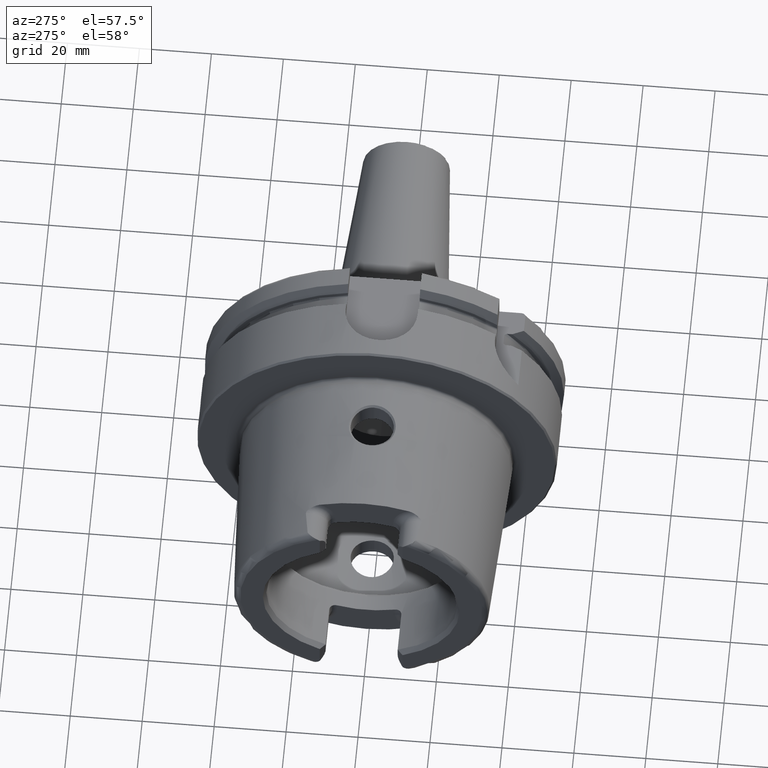
[diagram: clean part render]
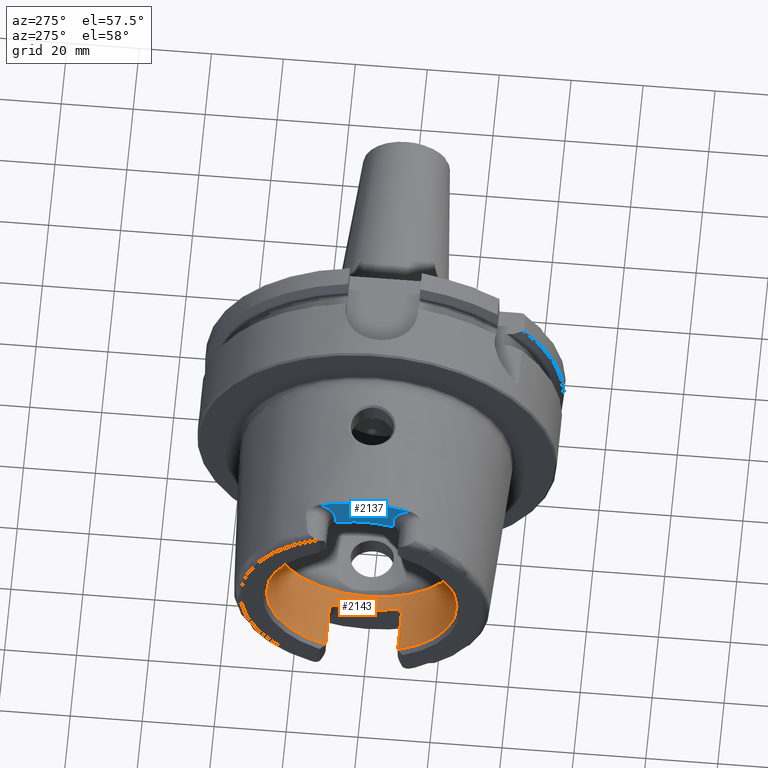
[diagram: same view with the hole feature highlighted: cylindrical wall and planar end face, labeled with their STEP entity ids]
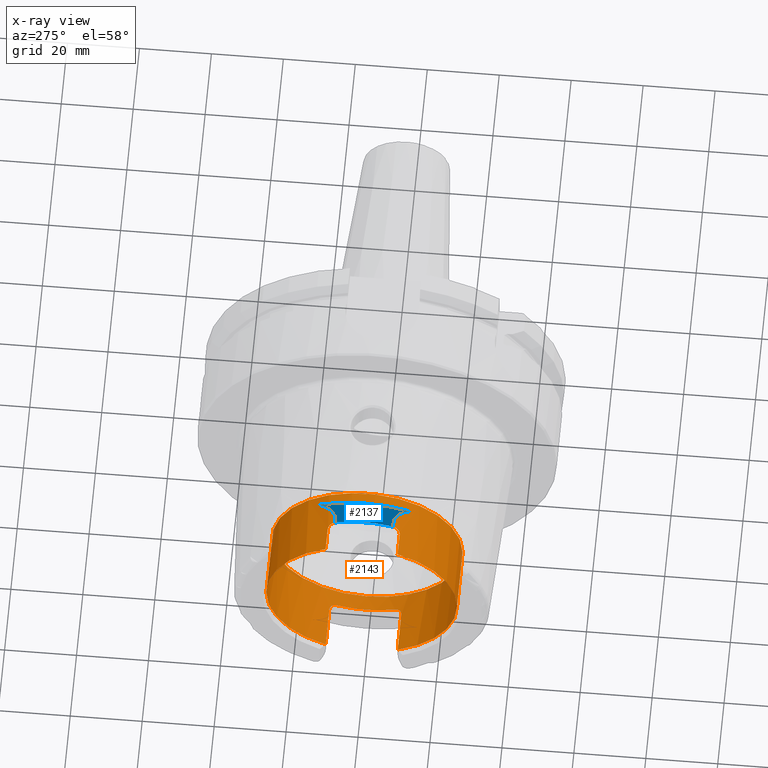
[diagram: x-ray of the same camera — body ghosted, the hole faces saturated]
A machine part, auxiliary view. The highlighted faces form one hole feature of diameter 53 mm: the cylindrical wall (entity #2143, orange) and its adjacent planar end face (entity #2137, blue) — they share a circular edge in the B-rep.
The next image is the same camera in x-ray (body ghosted, the hole faces saturated) — the bore reads through the body.
Wall:
#80=B_SPLINE_CURVE_WITH_KNOTS('',3,(#4470,#4471,#4472,#4473,#4474,#4475,
#4476,#4477,#4478,#4479),.UNSPECIFIED.,.F.,.F.,(4,2,2,2,4),(0.307245873696209,
0.387318131676521,0.467390389656833,0.542677307505841,0.617964225354849),
 .UNSPECIFIED.);
#81=B_SPLINE_CURVE_WITH_KNOTS('',3,(#4488,#4489,#4490,#4491,#4492,#4493,
#4494,#4495,#4496,#4497),.UNSPECIFIED.,.F.,.F.,(4,2,2,2,4),(0.61796422535485,
0.694491364966707,0.771018504578565,0.849854597041439,0.928690689504313),
 .UNSPECIFIED.);
#82=B_SPLINE_CURVE_WITH_KNOTS('',3,(#4510,#4511,#4512,#4513,#4514,#4515,
#4516,#4517,#4518,#4519),.UNSPECIFIED.,.F.,.F.,(4,2,2,2,4),(0.617964225354849,
0.693251143203857,0.768538061052865,0.848610319033177,0.928682577013489),
 .UNSPECIFIED.);
#83=B_SPLINE_CURVE_WITH_KNOTS('',3,(#4539,#4540,#4541,#4542,#4543,#4544,
#4545,#4546,#4547,#4548),.UNSPECIFIED.,.F.,.F.,(4,2,2,2,4),(0.307245873696209,
0.387318131676521,0.467390389656833,0.542677307505841,0.617964225354849),
 .UNSPECIFIED.);
#208=CYLINDRICAL_SURFACE('',#2409,26.5);
#313=FACE_OUTER_BOUND('',#447,.T.);
#447=EDGE_LOOP('',(#1906,#1907,#1908,#1909,#1910,#1911,#1912,#1913,#1914,
#1915,#1916,#1917,#1918,#1919,#1920,#1921,#1922));
#500=LINE('',#3254,#608);
#508=LINE('',#3329,#616);
#512=LINE('',#3393,#620);
#571=LINE('',#4535,#679);
#575=LINE('',#4583,#683);
#608=VECTOR('',#2614,10.);
#616=VECTOR('',#2660,10.);
#620=VECTOR('',#2682,10.);
#679=VECTOR('',#2961,10.);
#683=VECTOR('',#3005,26.5);
#730=CIRCLE('',#2263,26.5);
#731=CIRCLE('',#2264,26.5);
#794=CIRCLE('',#2388,26.5);
#799=CIRCLE('',#2400,26.5);
#800=CIRCLE('',#2403,26.5);
#803=CIRCLE('',#2410,26.5);
#804=CIRCLE('',#2411,26.5);
#876=VERTEX_POINT('',#3244);
#879=VERTEX_POINT('',#3252);
#888=VERTEX_POINT('',#3301);
#890=VERTEX_POINT('',#3307);
#891=VERTEX_POINT('',#3309);
#897=VERTEX_POINT('',#3327);
#903=VERTEX_POINT('',#3360);
#908=VERTEX_POINT('',#3392);
#1015=VERTEX_POINT('',#4468);
#1017=VERTEX_POINT('',#4487);
#1021=VERTEX_POINT('',#4508);
#1022=VERTEX_POINT('',#4509);
#1024=VERTEX_POINT('',#4529);
#1026=VERTEX_POINT('',#4580);
#1027=VERTEX_POINT('',#4581);
#1108=EDGE_CURVE('',#876,#879,#500,.T.);
#1121=EDGE_CURVE('',#890,#891,#730,.T.);
#1122=EDGE_CURVE('',#891,#888,#731,.T.);
#1131=EDGE_CURVE('',#890,#897,#508,.T.);
#1144=EDGE_CURVE('',#908,#903,#512,.T.);
#1302=EDGE_CURVE('',#1015,#897,#80,.T.);
#1306=EDGE_CURVE('',#908,#1017,#81,.T.);
#1312=EDGE_CURVE('',#1021,#1022,#82,.T.);
#1318=EDGE_CURVE('',#1024,#1022,#794,.T.);
#1321=EDGE_CURVE('',#1021,#888,#571,.T.);
#1324=EDGE_CURVE('',#1024,#879,#83,.T.);
#1328=EDGE_CURVE('',#1015,#1017,#799,.T.);
#1330=EDGE_CURVE('',#876,#903,#800,.T.);
#1334=EDGE_CURVE('',#1026,#1027,#803,.T.);
#1335=EDGE_CURVE('',#1026,#891,#575,.T.);
#1336=EDGE_CURVE('',#1027,#1026,#804,.T.);
#1906=ORIENTED_EDGE('',*,*,#1334,.F.);
#1907=ORIENTED_EDGE('',*,*,#1335,.T.);
#1908=ORIENTED_EDGE('',*,*,#1121,.F.);
#1909=ORIENTED_EDGE('',*,*,#1131,.T.);
#1910=ORIENTED_EDGE('',*,*,#1302,.F.);
#1911=ORIENTED_EDGE('',*,*,#1328,.T.);
#1912=ORIENTED_EDGE('',*,*,#1306,.F.);
#1913=ORIENTED_EDGE('',*,*,#1144,.T.);
#1914=ORIENTED_EDGE('',*,*,#1330,.F.);
#1915=ORIENTED_EDGE('',*,*,#1108,.T.);
#1916=ORIENTED_EDGE('',*,*,#1324,.F.);
#1917=ORIENTED_EDGE('',*,*,#1318,.T.);
#1918=ORIENTED_EDGE('',*,*,#1312,.F.);
#1919=ORIENTED_EDGE('',*,*,#1321,.T.);
#1920=ORIENTED_EDGE('',*,*,#1122,.F.);
#1921=ORIENTED_EDGE('',*,*,#1335,.F.);
#1922=ORIENTED_EDGE('',*,*,#1336,.F.);
#2143=ADVANCED_FACE('',(#313),#208,.F.);
#2263=AXIS2_PLACEMENT_3D('',#3310,#2638,#2639);
#2264=AXIS2_PLACEMENT_3D('',#3311,#2640,#2641);
#2388=AXIS2_PLACEMENT_3D('',#4530,#2954,#2955);
#2400=AXIS2_PLACEMENT_3D('',#4557,#2982,#2983);
#2403=AXIS2_PLACEMENT_3D('',#4572,#2988,#2989);
#2409=AXIS2_PLACEMENT_3D('',#4579,#3001,#3002);
#2410=AXIS2_PLACEMENT_3D('',#4582,#3003,#3004);
#2411=AXIS2_PLACEMENT_3D('',#4584,#3006,#3007);
#2614=DIRECTION('',(1.,0.,0.));
#2638=DIRECTION('center_axis',(1.,0.,0.));
#2639=DIRECTION('ref_axis',(0.,-1.,0.));
#2640=DIRECTION('center_axis',(1.,0.,0.));
#2641=DIRECTION('ref_axis',(0.,-1.,0.));
#2660=DIRECTION('',(1.,0.,0.));
#2682=DIRECTION('',(-1.,0.,0.));
#2954=DIRECTION('center_axis',(-1.,0.,0.));
#2955=DIRECTION('ref_axis',(0.,1.,0.));
#2961=DIRECTION('',(-1.,0.,0.));
#2982=DIRECTION('center_axis',(-1.,0.,0.));
#2983=DIRECTION('ref_axis',(0.,1.,0.));
#2988=DIRECTION('center_axis',(1.,0.,0.));
#2989=DIRECTION('ref_axis',(0.,-1.,0.));
#3001=DIRECTION('center_axis',(-1.,0.,0.));
#3002=DIRECTION('ref_axis',(0.,1.,0.));
#3003=DIRECTION('center_axis',(-1.,0.,0.));
#3004=DIRECTION('ref_axis',(0.,0.,1.));
#3005=DIRECTION('',(-1.,0.,0.));
#3006=DIRECTION('center_axis',(-1.,0.,0.));
#3007=DIRECTION('ref_axis',(0.,0.,1.));
#3244=CARTESIAN_POINT('',(-48.5,10.01,-24.5367051577835));
#3252=CARTESIAN_POINT('',(-37.,10.01,-24.5367051577835));
#3254=CARTESIAN_POINT('',(-40.2903629710818,10.01,-24.5367051577835));
#3301=CARTESIAN_POINT('',(-48.5,-10.01,-24.5367051577835));
#3307=CARTESIAN_POINT('',(-48.5,-10.01,24.5367051577835));
#3309=CARTESIAN_POINT('',(-48.5,-26.5,3.24531401774049E-15));
#3310=CARTESIAN_POINT('Origin',(-48.5,0.,0.));
#3311=CARTESIAN_POINT('Origin',(-48.5,0.,0.));
#3327=CARTESIAN_POINT('',(-42.,-10.01,24.5367051577835));
#3329=CARTESIAN_POINT('',(-40.2903629710818,-10.01,24.5367051577835));
#3360=CARTESIAN_POINT('',(-48.5,10.01,24.5367051577835));
#3392=CARTESIAN_POINT('',(-42.,10.01,24.5367051577835));
#3393=CARTESIAN_POINT('',(-40.2903629710818,10.01,24.5367051577835));
#4468=CARTESIAN_POINT('',(-40.,-8.01,25.2604414054862));
#4470=CARTESIAN_POINT('Ctrl Pts',(-40.,-8.01,25.2604414054862));
#4471=CARTESIAN_POINT('Ctrl Pts',(-40.,-8.26442271458071,25.1797648285777));
#4472=CARTESIAN_POINT('Ctrl Pts',(-40.0513332778729,-8.53503831367686,25.0892968127514));
#4473=CARTESIAN_POINT('Ctrl Pts',(-40.2604388709541,-9.03317850506395,24.9142806373643));
#4474=CARTESIAN_POINT('Ctrl Pts',(-40.4182028025644,-9.2607746884821,24.8299262887475));
#4475=CARTESIAN_POINT('Ctrl Pts',(-40.7762398849713,-9.61038047170956,24.6966285655713));
#4476=CARTESIAN_POINT('Ctrl Pts',(-40.996584045901,-9.75993653512726,24.6374761492843));
#4477=CARTESIAN_POINT('Ctrl Pts',(-41.4829332858843,-9.95981108540838,24.557356442995));
#4478=CARTESIAN_POINT('Ctrl Pts',(-41.74904360717,-10.01,24.5367051577835));
#4479=CARTESIAN_POINT('Ctrl Pts',(-42.,-10.01,24.5367051577835));
#4487=CARTESIAN_POINT('',(-40.,8.01,25.2604414054862));
#4488=CARTESIAN_POINT('Ctrl Pts',(-42.,10.01,24.5367051577835));
#4489=CARTESIAN_POINT('Ctrl Pts',(-41.7449095346271,10.01,24.5367051577835));
#4490=CARTESIAN_POINT('Ctrl Pts',(-41.4747619014646,9.95816285425487,24.5580391842641));
#4491=CARTESIAN_POINT('Ctrl Pts',(-40.9823460284033,9.75229566196282,24.640515927451));
#4492=CARTESIAN_POINT('Ctrl Pts',(-40.7599680829949,9.59839520774108,24.7013267120605));
#4493=CARTESIAN_POINT('Ctrl Pts',(-40.4063494382929,9.24477656303909,24.8358806096526));
#4494=CARTESIAN_POINT('Ctrl Pts',(-40.2529543645221,9.01930384320105,24.9192727261742));
#4495=CARTESIAN_POINT('Ctrl Pts',(-40.049776768453,8.52719637786957,25.0919293188873));
#4496=CARTESIAN_POINT('Ctrl Pts',(-40.,8.26049490494288,25.1810103236462));
#4497=CARTESIAN_POINT('Ctrl Pts',(-40.,8.01,25.2604414054862));
#4508=CARTESIAN_POINT('',(-37.,-10.01,-24.5367051577835));
#4509=CARTESIAN_POINT('',(-35.,-8.01,-25.2604414054862));
#4510=CARTESIAN_POINT('Ctrl Pts',(-37.,-10.01,-24.5367051577835));
#4511=CARTESIAN_POINT('Ctrl Pts',(-36.74904360717,-10.01,-24.5367051577835));
#4512=CARTESIAN_POINT('Ctrl Pts',(-36.4829332858843,-9.95981108540838,-24.557356442995));
#4513=CARTESIAN_POINT('Ctrl Pts',(-35.9965840459011,-9.75993653512726,-24.6374761492843));
#4514=CARTESIAN_POINT('Ctrl Pts',(-35.7762398849713,-9.61038047170956,-24.6966285655713));
#4515=CARTESIAN_POINT('Ctrl Pts',(-35.4182028025644,-9.2607746884821,-24.8299262887475));
#4516=CARTESIAN_POINT('Ctrl Pts',(-35.2604388709541,-9.03317850506395,-24.9142806373643));
#4517=CARTESIAN_POINT('Ctrl Pts',(-35.0513332778729,-8.53503831367686,-25.0892968127514));
#4518=CARTESIAN_POINT('Ctrl Pts',(-35.,-8.26442271458071,-25.1797648285777));
#4519=CARTESIAN_POINT('Ctrl Pts',(-35.,-8.01,-25.2604414054862));
#4529=CARTESIAN_POINT('',(-35.,8.01,-25.2604414054862));
#4530=CARTESIAN_POINT('Origin',(-35.,0.,0.));
#4535=CARTESIAN_POINT('',(-40.2903629710818,-10.01,-24.5367051577835));
#4539=CARTESIAN_POINT('Ctrl Pts',(-35.,8.01,-25.2604414054862));
#4540=CARTESIAN_POINT('Ctrl Pts',(-35.,8.26442271458071,-25.1797648285777));
#4541=CARTESIAN_POINT('Ctrl Pts',(-35.0513332778729,8.53503831367686,-25.0892968127514));
#4542=CARTESIAN_POINT('Ctrl Pts',(-35.2604388709541,9.03317850506395,-24.9142806373643));
#4543=CARTESIAN_POINT('Ctrl Pts',(-35.4182028025644,9.2607746884821,-24.8299262887475));
#4544=CARTESIAN_POINT('Ctrl Pts',(-35.7762398849713,9.61038047170956,-24.6966285655713));
#4545=CARTESIAN_POINT('Ctrl Pts',(-35.9965840459011,9.75993653512726,-24.6374761492843));
#4546=CARTESIAN_POINT('Ctrl Pts',(-36.4829332858843,9.95981108540838,-24.557356442995));
#4547=CARTESIAN_POINT('Ctrl Pts',(-36.74904360717,10.01,-24.5367051577835));
#4548=CARTESIAN_POINT('Ctrl Pts',(-37.,10.01,-24.5367051577835));
#4557=CARTESIAN_POINT('Origin',(-40.,0.,0.));
#4572=CARTESIAN_POINT('Origin',(-48.5,0.,0.));
#4579=CARTESIAN_POINT('Origin',(-40.2903629710818,0.,0.));
#4580=CARTESIAN_POINT('',(-30.5807259421637,-26.5,3.24531401774049E-15));
#4581=CARTESIAN_POINT('',(-30.5807259421637,-3.24531401774049E-15,-26.5));
#4582=CARTESIAN_POINT('Origin',(-30.5807259421637,0.,0.));
#4583=CARTESIAN_POINT('',(-40.2903629710818,-26.5,3.24531401774049E-15));
#4584=CARTESIAN_POINT('Origin',(-30.5807259421637,0.,0.));
End face:
#129=PLANE('',#2399);
#307=FACE_OUTER_BOUND('',#441,.T.);
#441=EDGE_LOOP('',(#1876,#1877,#1878,#1879,#1880,#1881));
#565=LINE('',#4469,#673);
#566=LINE('',#4498,#674);
#673=VECTOR('',#2915,10.);
#674=VECTOR('',#2928,10.);
#742=CIRCLE('',#2286,36.003493987976);
#785=CIRCLE('',#2372,6.88);
#787=CIRCLE('',#2375,6.88);
#799=CIRCLE('',#2400,26.5);
#922=VERTEX_POINT('',#3647);
#923=VERTEX_POINT('',#3664);
#1014=VERTEX_POINT('',#4466);
#1015=VERTEX_POINT('',#4468);
#1016=VERTEX_POINT('',#4483);
#1017=VERTEX_POINT('',#4487);
#1163=EDGE_CURVE('',#922,#923,#742,.T.);
#1301=EDGE_CURVE('',#1014,#1015,#565,.T.);
#1303=EDGE_CURVE('',#923,#1014,#785,.T.);
#1305=EDGE_CURVE('',#1016,#922,#787,.T.);
#1307=EDGE_CURVE('',#1017,#1016,#566,.T.);
#1328=EDGE_CURVE('',#1015,#1017,#799,.T.);
#1876=ORIENTED_EDGE('',*,*,#1303,.F.);
#1877=ORIENTED_EDGE('',*,*,#1163,.F.);
#1878=ORIENTED_EDGE('',*,*,#1305,.F.);
#1879=ORIENTED_EDGE('',*,*,#1307,.F.);
#1880=ORIENTED_EDGE('',*,*,#1328,.F.);
#1881=ORIENTED_EDGE('',*,*,#1301,.F.);
#2137=ADVANCED_FACE('',(#307),#129,.T.);
#2286=AXIS2_PLACEMENT_3D('',#3665,#2696,#2697);
#2372=AXIS2_PLACEMENT_3D('',#4481,#2918,#2919);
#2375=AXIS2_PLACEMENT_3D('',#4485,#2924,#2925);
#2399=AXIS2_PLACEMENT_3D('',#4556,#2980,#2981);
#2400=AXIS2_PLACEMENT_3D('',#4557,#2982,#2983);
#2696=DIRECTION('center_axis',(1.,0.,0.));
#2697=DIRECTION('ref_axis',(0.,1.,0.));
#2915=DIRECTION('',(0.,0.,-1.));
#2918=DIRECTION('center_axis',(-1.,0.,0.));
#2919=DIRECTION('ref_axis',(0.,0.564947834751706,0.82512662301574));
#2924=DIRECTION('center_axis',(-1.,0.,0.));
#2925=DIRECTION('ref_axis',(0.,-0.564947834751705,0.825126623015741));
#2928=DIRECTION('',(0.,0.,1.));
#2980=DIRECTION('center_axis',(-1.,0.,0.));
#2981=DIRECTION('ref_axis',(0.,0.,1.));
#2982=DIRECTION('center_axis',(-1.,0.,0.));
#2983=DIRECTION('ref_axis',(0.,1.,0.));
#3647=CARTESIAN_POINT('',(-40.,12.4227760464511,33.7923987701664));
#3664=CARTESIAN_POINT('',(-40.,-12.4227760464511,33.7923987701664));
#3665=CARTESIAN_POINT('Origin',(-40.,0.,0.));
#4466=CARTESIAN_POINT('',(-40.,-8.01,27.37));
#4468=CARTESIAN_POINT('',(-40.,-8.01,25.2604414054862));
#4469=CARTESIAN_POINT('',(-40.,-8.01,23.5));
#4481=CARTESIAN_POINT('Origin',(-40.,-14.89,27.37));
#4483=CARTESIAN_POINT('',(-40.,8.01,27.37));
#4485=CARTESIAN_POINT('Origin',(-40.,14.89,27.37));
#4487=CARTESIAN_POINT('',(-40.,8.01,25.2604414054862));
#4498=CARTESIAN_POINT('',(-40.,8.01,28.185));
#4556=CARTESIAN_POINT('Origin',(-40.,0.,29.));
#4557=CARTESIAN_POINT('Origin',(-40.,0.,0.));